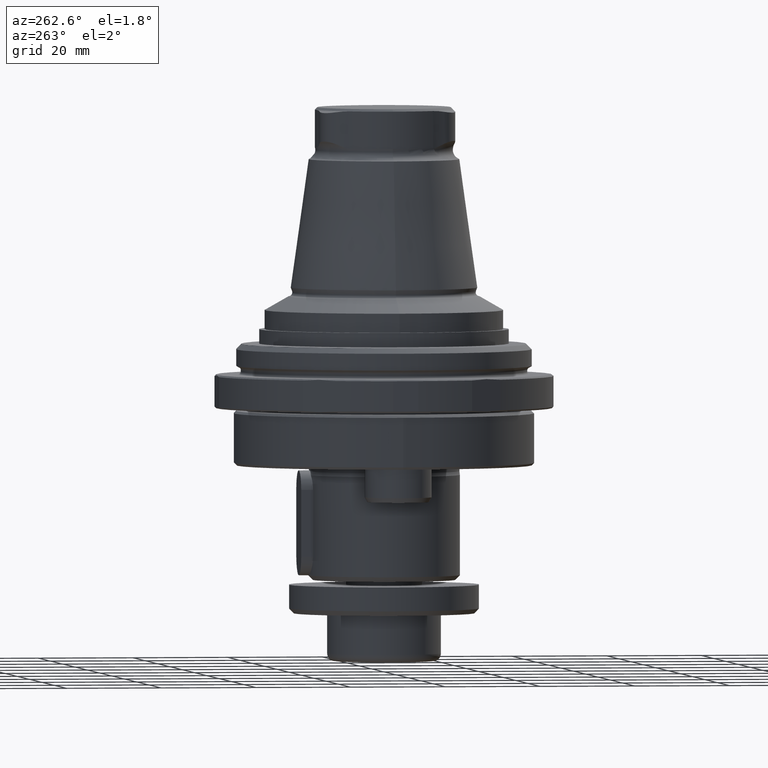
[diagram: clean part render]
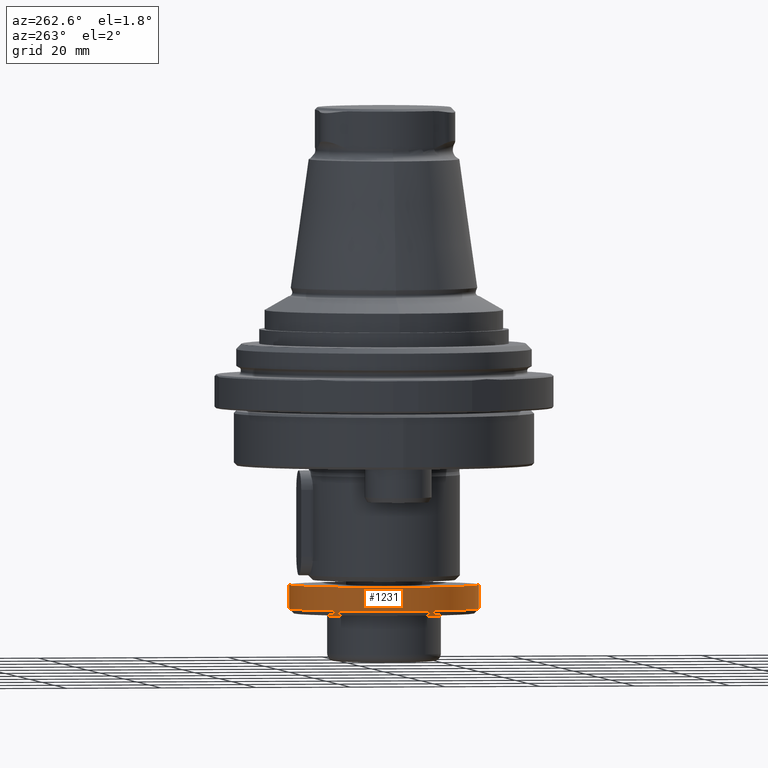
[diagram: same view with one face highlighted and labeled with its STEP entity id]
A machine part, auxiliary view. The second image highlights one B-rep face of the part: STEP entity #1231.
In plain terms, the highlighted cylindrical surface (bore or boss wall) has radius 20 mm, axis along (-0, 0, -1).
Its self-contained STEP definition (entity closure, byte-faithful):
#248=ORIENTED_EDGE('',*,*,#568,.F.);
#249=ORIENTED_EDGE('',*,*,#569,.T.);
#568=EDGE_CURVE('',#730,#730,#847,.T.);
#569=EDGE_CURVE('',#731,#731,#848,.T.);
#730=VERTEX_POINT('',#1993);
#731=VERTEX_POINT('',#1995);
#847=CIRCLE('',#1360,20.);
#848=CIRCLE('',#1361,20.);
#937=EDGE_LOOP('',(#248));
#938=EDGE_LOOP('',(#249));
#1073=FACE_BOUND('',#937,.T.);
#1074=FACE_BOUND('',#938,.T.);
#1184=CYLINDRICAL_SURFACE('',#1359,20.);
#1231=ADVANCED_FACE('',(#1073,#1074),#1184,.T.);
#1359=AXIS2_PLACEMENT_3D('',#1991,#1578,#1579);
#1360=AXIS2_PLACEMENT_3D('',#1992,#1580,#1581);
#1361=AXIS2_PLACEMENT_3D('',#1994,#1582,#1583);
#1578=DIRECTION('',(-2.39050483828487E-32,2.44921270764479E-16,-1.));
#1579=DIRECTION('',(-8.32667268468867E-17,-1.,-2.44921270764479E-16));
#1580=DIRECTION('',(-2.39050483828487E-32,2.44921270764479E-16,-1.));
#1581=DIRECTION('',(-8.32667268468867E-17,-1.,-2.44921270764479E-16));
#1582=DIRECTION('',(-2.39050483828487E-32,2.44921270764479E-16,-1.));
#1583=DIRECTION('',(-8.32667268468867E-17,-1.,-2.44921270764479E-16));
#1991=CARTESIAN_POINT('',(-1.57160064314696E-30,1.64418581831071E-14,-111.));
#1992=CARTESIAN_POINT('',(-1.13392691793194E-31,1.50166066647389E-15,-50.));
#1993=CARTESIAN_POINT('',(-1.66533453693774E-15,-20.,-50.));
#1994=CARTESIAN_POINT('',(6.13255012104889E-33,2.77054312651491E-16,-45.));
#1995=CARTESIAN_POINT('',(-1.66533453693773E-15,-20.,-45.));